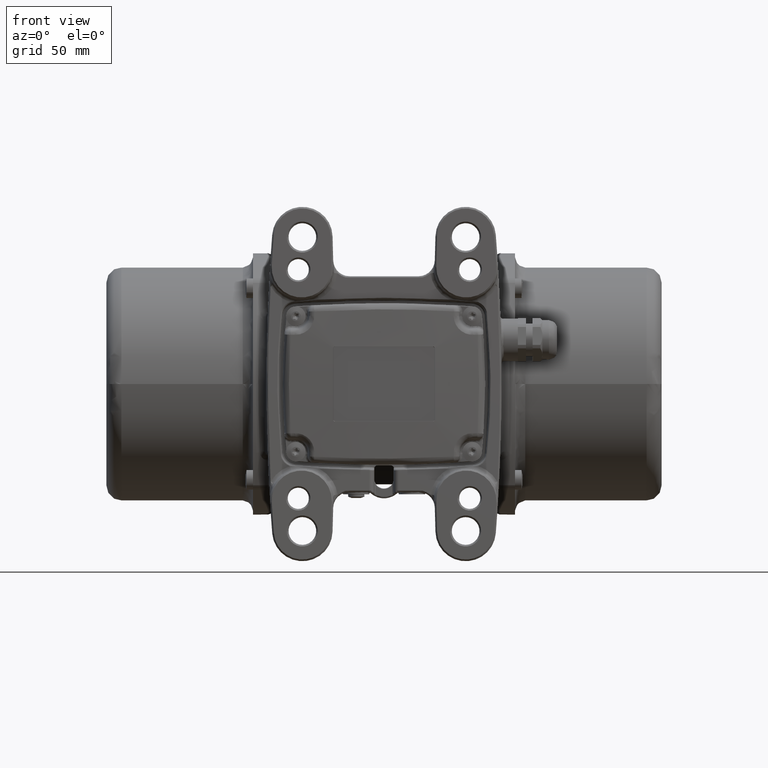
[diagram: clean part render]
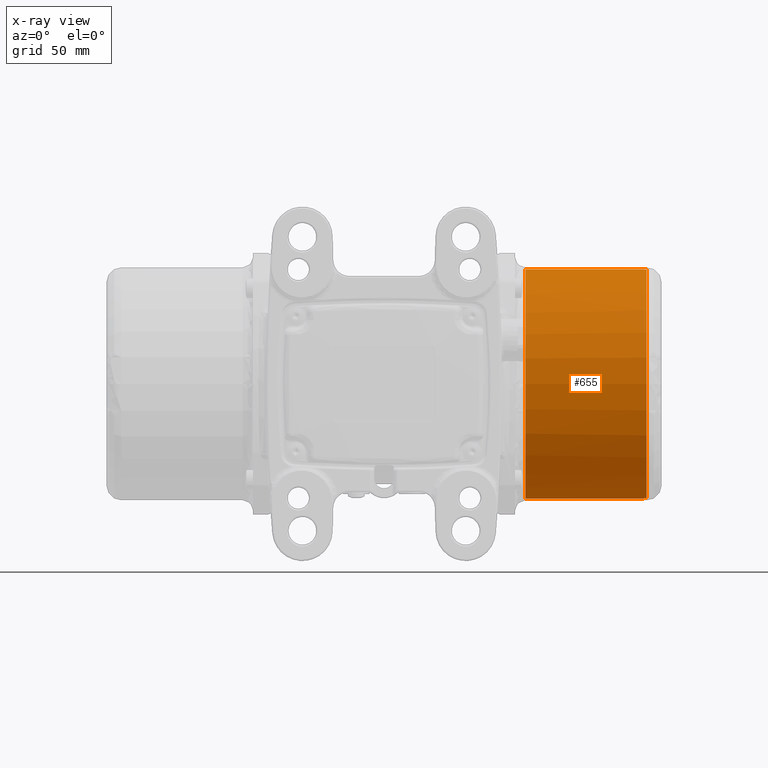
[diagram: x-ray — body ghosted, one internal face saturated and labeled with its STEP entity id]
A machine part, front view, then the same camera in x-ray: the body is ghosted and one INTERNAL B-rep face — a face not visible from any outside direction — is saturated and labeled: STEP entity #655.
In plain terms, the highlighted cylindrical surface (bore or boss wall) has radius 70.2 mm, axis along (1, -0, -0).
Its self-contained STEP definition (entity closure, byte-faithful):
#655 = ADVANCED_FACE ( 'NONE', ( #33165, #63120 ), #61029, .F. ) ;
#942 = AXIS2_PLACEMENT_3D ( 'NONE', #37469, #46019, #28862 ) ;
#12336 = CIRCLE ( 'NONE', #127246, 70.20000000000000300 ) ;
#15660 = ORIENTED_EDGE ( 'NONE', *, *, #77525, .F. ) ;
#19943 = CARTESIAN_POINT ( 'NONE',  ( 160.7999999999998100, 44.80000000000000400, 6.524716326015804800E-013 ) ) ;
#20574 = DIRECTION ( 'NONE',  ( -2.767649990162427200E-015, -1.000000000000000000, -1.387778780781442000E-017 ) ) ;
#28862 = DIRECTION ( 'NONE',  ( -2.767649990162427200E-015, -1.000000000000000000, -1.387778780781442000E-017 ) ) ;
#33165 = FACE_OUTER_BOUND ( 'NONE', #87202, .T. ) ;
#37469 = CARTESIAN_POINT ( 'NONE',  ( 170.0000000000000000, 115.0000000000000000, 6.524377342117390600E-013 ) ) ;
#37733 = DIRECTION ( 'NONE',  ( -1.000000000000000000, 2.857509198010475400E-015, 1.095781623858763900E-016 ) ) ;
#45531 = CIRCLE ( 'NONE', #107035, 70.20000000000000300 ) ;
#46019 = DIRECTION ( 'NONE',  ( 1.000000000000000000, -2.857509198010475400E-015, -1.095781623858763900E-016 ) ) ;
#57783 = DIRECTION ( 'NONE',  ( 2.965339275174028900E-015, 1.000000000000000000, 1.387778780781442000E-017 ) ) ;
#61029 = CYLINDRICAL_SURFACE ( 'NONE', #942, 70.20000000000000300 ) ;
#63120 = FACE_OUTER_BOUND ( 'NONE', #108577, .T. ) ;
#77525 = EDGE_CURVE ( 'NONE', #114227, #114227, #12336, .T. ) ;
#86908 = VERTEX_POINT ( 'NONE', #93380 ) ;
#87202 = EDGE_LOOP ( 'NONE', ( #117374 ) ) ;
#93380 = CARTESIAN_POINT ( 'NONE',  ( 86.49999999999870700, 185.2000000000000200, 6.625617314750686000E-013 ) ) ;
#99150 = EDGE_CURVE ( 'NONE', #86908, #86908, #45531, .T. ) ;
#107035 = AXIS2_PLACEMENT_3D ( 'NONE', #126403, #111357, #57783 ) ;
#108577 = EDGE_LOOP ( 'NONE', ( #15660 ) ) ;
#111357 = DIRECTION ( 'NONE',  ( 1.000000000000000000, -2.857509198010475400E-015, -1.095781623858763900E-016 ) ) ;
#114227 = VERTEX_POINT ( 'NONE', #19943 ) ;
#117374 = ORIENTED_EDGE ( 'NONE', *, *, #99150, .F. ) ;
#126403 = CARTESIAN_POINT ( 'NONE',  ( 86.49999999999849400, 115.0000000000000000, 6.615875107709599700E-013 ) ) ;
#127246 = AXIS2_PLACEMENT_3D ( 'NONE', #132368, #37733, #20574 ) ;
#132368 = CARTESIAN_POINT ( 'NONE',  ( 160.8000000000000100, 115.0000000000000000, 6.534458533056890200E-013 ) ) ;